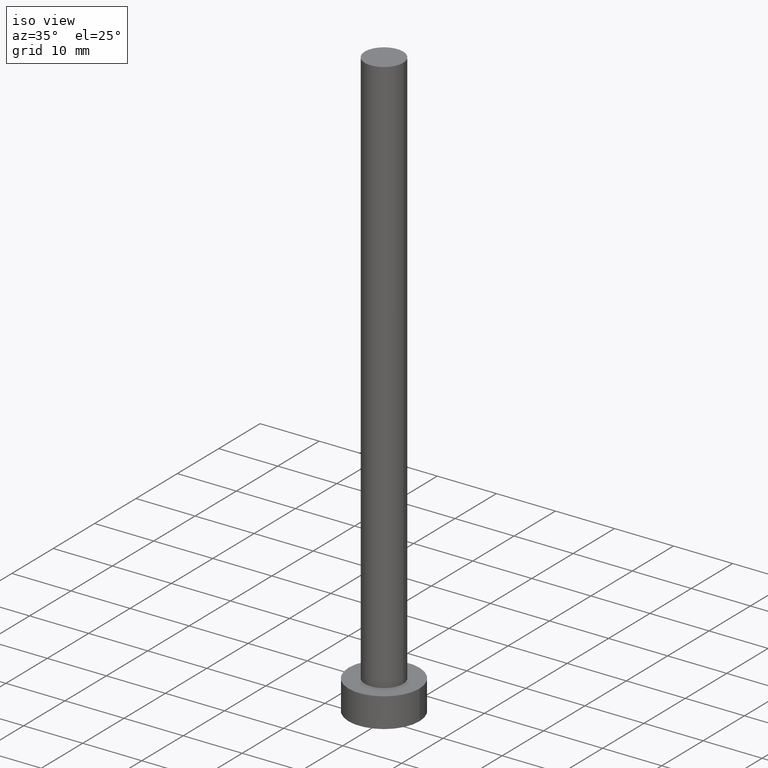
[diagram: clean part render]
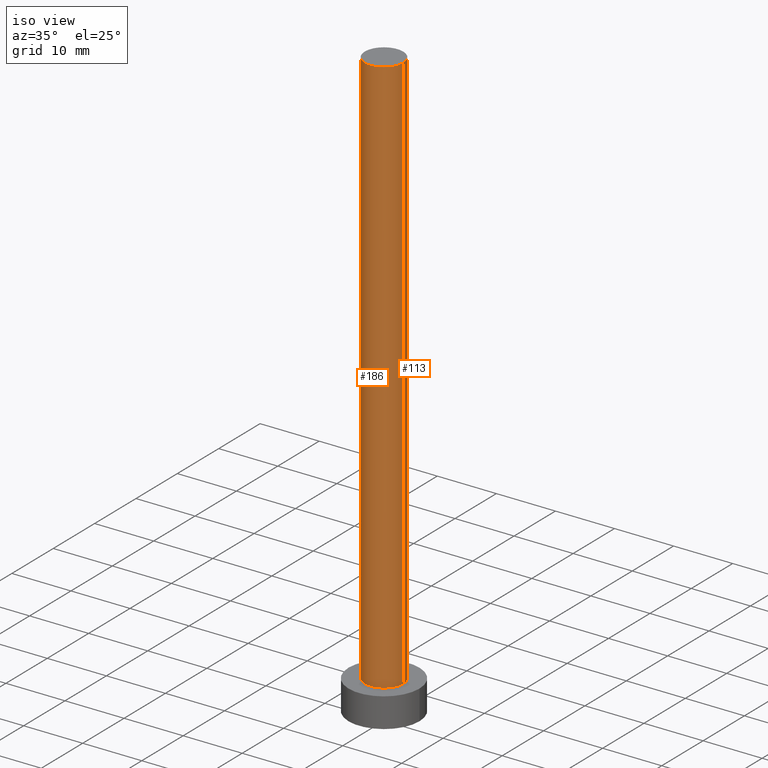
[diagram: same view with one multi-face feature highlighted, each face labeled with its STEP entity id]
A machine part, iso view. The highlighted faces form ONE feature: a constant-radius fillet chain: 2 tangent blend faces with common blend radius 3.25 mm. The faces share edges in the B-rep.
Their STEP definitions:
[1] entity #186 (Cylinder):
#24 = CYLINDRICAL_SURFACE ( 'NONE', #38, 3.250000000000000444 ) ;
#29 = CARTESIAN_POINT ( 'NONE',  ( 3.250000000000000444, 3.980102097228898231E-16, 100.0000000000000000 ) ) ;
#35 = VERTEX_POINT ( 'NONE', #235 ) ;
#36 = DIRECTION ( 'NONE',  ( -0.000000000000000000, -0.000000000000000000, -1.000000000000000000 ) ) ;
#38 = AXIS2_PLACEMENT_3D ( 'NONE', #140, #91, #72 ) ;
#40 = ORIENTED_EDGE ( 'NONE', *, *, #210, .F. ) ;
#52 = CARTESIAN_POINT ( 'NONE',  ( -3.250000000000000444, 0.000000000000000000, 100.0000000000000000 ) ) ;
#54 = LINE ( 'NONE', #252, #136 ) ;
#58 = CARTESIAN_POINT ( 'NONE',  ( -3.250000000000000444, 0.000000000000000000, 100.0000000000000000 ) ) ;
#65 = VERTEX_POINT ( 'NONE', #128 ) ;
#66 = DIRECTION ( 'NONE',  ( 0.000000000000000000, 0.000000000000000000, 1.000000000000000000 ) ) ;
#72 = DIRECTION ( 'NONE',  ( -1.000000000000000000, 0.000000000000000000, 0.000000000000000000 ) ) ;
#86 = DIRECTION ( 'NONE',  ( 1.000000000000000000, 0.000000000000000000, 0.000000000000000000 ) ) ;
#91 = DIRECTION ( 'NONE',  ( -0.000000000000000000, -0.000000000000000000, -1.000000000000000000 ) ) ;
#109 = CARTESIAN_POINT ( 'NONE',  ( 0.000000000000000000, 0.000000000000000000, 5.000000000000000000 ) ) ;
#119 = AXIS2_PLACEMENT_3D ( 'NONE', #109, #131, #216 ) ;
#127 = EDGE_CURVE ( 'NONE', #178, #157, #169, .T. ) ;
#128 = CARTESIAN_POINT ( 'NONE',  ( 3.250000000000000444, 3.980102097228898231E-16, 5.000000000000000000 ) ) ;
#130 = EDGE_CURVE ( 'NONE', #178, #35, #170, .T. ) ;
#131 = DIRECTION ( 'NONE',  ( 0.000000000000000000, 0.000000000000000000, 1.000000000000000000 ) ) ;
#135 = VECTOR ( 'NONE', #146, 1000.000000000000000 ) ;
#136 = VECTOR ( 'NONE', #36, 1000.000000000000000 ) ;
#140 = CARTESIAN_POINT ( 'NONE',  ( 0.000000000000000000, 0.000000000000000000, 100.0000000000000000 ) ) ;
#146 = DIRECTION ( 'NONE',  ( -0.000000000000000000, -0.000000000000000000, -1.000000000000000000 ) ) ;
#147 = ORIENTED_EDGE ( 'NONE', *, *, #130, .T. ) ;
#157 = VERTEX_POINT ( 'NONE', #29 ) ;
#168 = CARTESIAN_POINT ( 'NONE',  ( 0.000000000000000000, 0.000000000000000000, 100.0000000000000000 ) ) ;
#169 = CIRCLE ( 'NONE', #246, 3.250000000000000444 ) ;
#170 = LINE ( 'NONE', #58, #135 ) ;
#172 = ORIENTED_EDGE ( 'NONE', *, *, #127, .F. ) ;
#178 = VERTEX_POINT ( 'NONE', #52 ) ;
#183 = ORIENTED_EDGE ( 'NONE', *, *, #207, .T. ) ;
#186 = ADVANCED_FACE ( 'NONE', ( #245 ), #24, .T. ) ;
#203 = CIRCLE ( 'NONE', #119, 3.250000000000000444 ) ;
#207 = EDGE_CURVE ( 'NONE', #35, #65, #203, .T. ) ;
#210 = EDGE_CURVE ( 'NONE', #157, #65, #54, .T. ) ;
#216 = DIRECTION ( 'NONE',  ( 1.000000000000000000, 0.000000000000000000, 0.000000000000000000 ) ) ;
#222 = EDGE_LOOP ( 'NONE', ( #40, #172, #147, #183 ) ) ;
#235 = CARTESIAN_POINT ( 'NONE',  ( -3.250000000000000444, 0.000000000000000000, 5.000000000000000000 ) ) ;
#245 = FACE_OUTER_BOUND ( 'NONE', #222, .T. ) ;
#246 = AXIS2_PLACEMENT_3D ( 'NONE', #168, #66, #86 ) ;
#252 = CARTESIAN_POINT ( 'NONE',  ( 3.250000000000000444, 3.980102097228898231E-16, 100.0000000000000000 ) ) ;
[2] entity #113 (Cylinder):
#2 = DIRECTION ( 'NONE',  ( -0.000000000000000000, -0.000000000000000000, -1.000000000000000000 ) ) ;
#18 = CIRCLE ( 'NONE', #142, 3.250000000000000444 ) ;
#21 = ORIENTED_EDGE ( 'NONE', *, *, #210, .T. ) ;
#29 = CARTESIAN_POINT ( 'NONE',  ( 3.250000000000000444, 3.980102097228898231E-16, 100.0000000000000000 ) ) ;
#35 = VERTEX_POINT ( 'NONE', #235 ) ;
#36 = DIRECTION ( 'NONE',  ( -0.000000000000000000, -0.000000000000000000, -1.000000000000000000 ) ) ;
#44 = FACE_OUTER_BOUND ( 'NONE', #195, .T. ) ;
#49 = EDGE_CURVE ( 'NONE', #65, #35, #106, .T. ) ;
#52 = CARTESIAN_POINT ( 'NONE',  ( -3.250000000000000444, 0.000000000000000000, 100.0000000000000000 ) ) ;
#54 = LINE ( 'NONE', #252, #136 ) ;
#58 = CARTESIAN_POINT ( 'NONE',  ( -3.250000000000000444, 0.000000000000000000, 100.0000000000000000 ) ) ;
#61 = CARTESIAN_POINT ( 'NONE',  ( 0.000000000000000000, 0.000000000000000000, 100.0000000000000000 ) ) ;
#65 = VERTEX_POINT ( 'NONE', #128 ) ;
#103 = DIRECTION ( 'NONE',  ( -1.000000000000000000, 0.000000000000000000, 0.000000000000000000 ) ) ;
#104 = EDGE_CURVE ( 'NONE', #157, #178, #18, .T. ) ;
#106 = CIRCLE ( 'NONE', #244, 3.250000000000000444 ) ;
#113 = ADVANCED_FACE ( 'NONE', ( #44 ), #173, .T. ) ;
#126 = DIRECTION ( 'NONE',  ( 0.000000000000000000, 0.000000000000000000, 1.000000000000000000 ) ) ;
#128 = CARTESIAN_POINT ( 'NONE',  ( 3.250000000000000444, 3.980102097228898231E-16, 5.000000000000000000 ) ) ;
#130 = EDGE_CURVE ( 'NONE', #178, #35, #170, .T. ) ;
#132 = AXIS2_PLACEMENT_3D ( 'NONE', #139, #2, #103 ) ;
#135 = VECTOR ( 'NONE', #146, 1000.000000000000000 ) ;
#136 = VECTOR ( 'NONE', #36, 1000.000000000000000 ) ;
#139 = CARTESIAN_POINT ( 'NONE',  ( 0.000000000000000000, 0.000000000000000000, 100.0000000000000000 ) ) ;
#141 = ORIENTED_EDGE ( 'NONE', *, *, #104, .F. ) ;
#142 = AXIS2_PLACEMENT_3D ( 'NONE', #61, #223, #164 ) ;
#146 = DIRECTION ( 'NONE',  ( -0.000000000000000000, -0.000000000000000000, -1.000000000000000000 ) ) ;
#149 = CARTESIAN_POINT ( 'NONE',  ( 0.000000000000000000, 0.000000000000000000, 5.000000000000000000 ) ) ;
#157 = VERTEX_POINT ( 'NONE', #29 ) ;
#164 = DIRECTION ( 'NONE',  ( 1.000000000000000000, 0.000000000000000000, 0.000000000000000000 ) ) ;
#170 = LINE ( 'NONE', #58, #135 ) ;
#173 = CYLINDRICAL_SURFACE ( 'NONE', #132, 3.250000000000000444 ) ;
#178 = VERTEX_POINT ( 'NONE', #52 ) ;
#185 = DIRECTION ( 'NONE',  ( 1.000000000000000000, 0.000000000000000000, 0.000000000000000000 ) ) ;
#195 = EDGE_LOOP ( 'NONE', ( #141, #21, #233, #231 ) ) ;
#210 = EDGE_CURVE ( 'NONE', #157, #65, #54, .T. ) ;
#223 = DIRECTION ( 'NONE',  ( 0.000000000000000000, 0.000000000000000000, 1.000000000000000000 ) ) ;
#231 = ORIENTED_EDGE ( 'NONE', *, *, #130, .F. ) ;
#233 = ORIENTED_EDGE ( 'NONE', *, *, #49, .T. ) ;
#235 = CARTESIAN_POINT ( 'NONE',  ( -3.250000000000000444, 0.000000000000000000, 5.000000000000000000 ) ) ;
#244 = AXIS2_PLACEMENT_3D ( 'NONE', #149, #126, #185 ) ;
#252 = CARTESIAN_POINT ( 'NONE',  ( 3.250000000000000444, 3.980102097228898231E-16, 100.0000000000000000 ) ) ;